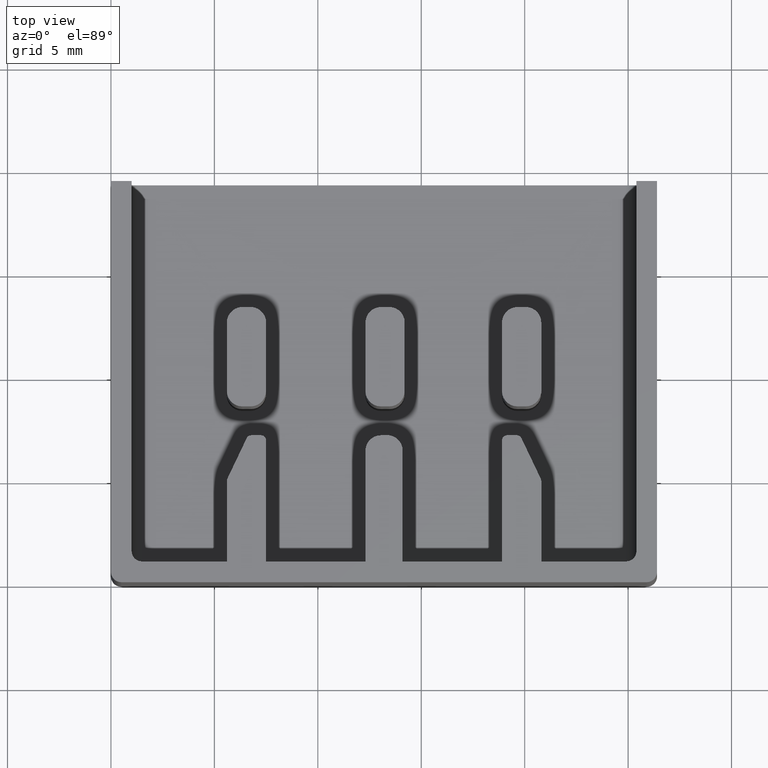
[diagram: clean part render]
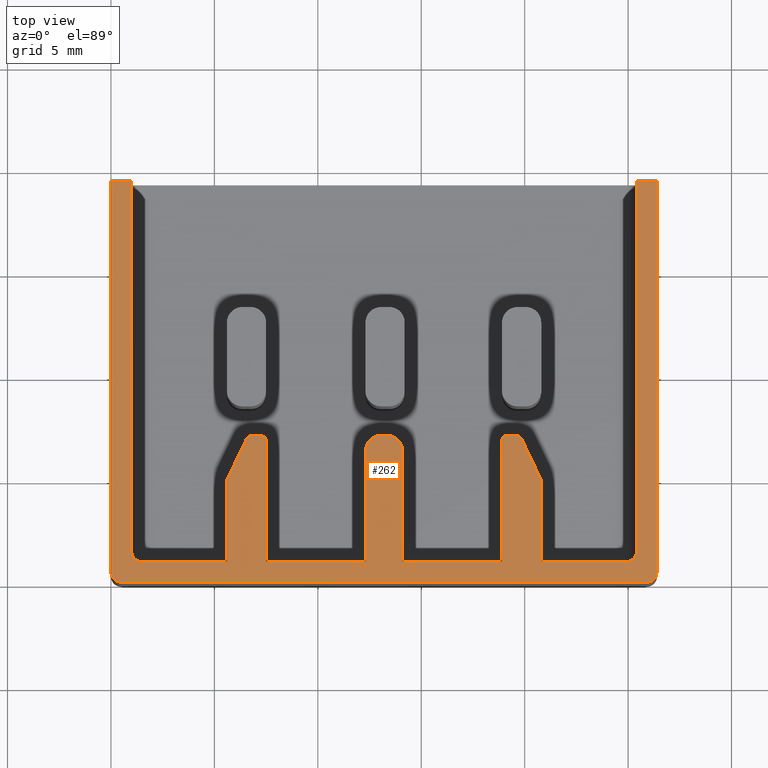
[diagram: same view with one face highlighted and labeled with its STEP entity id]
A machine part, top view. The second image highlights one B-rep face of the part: STEP entity #262.
In plain terms, the highlighted planar face has unit normal (0, 0, -1).
Its self-contained STEP definition (entity closure, byte-faithful):
#5 = EDGE_CURVE ( 'NONE', #844, #812, #271, .T. ) ;
#9 = EDGE_CURVE ( 'NONE', #807, #791, #1285, .T. ) ;
#10 = EDGE_CURVE ( 'NONE', #804, #785, #1305, .T. ) ;
#53 = EDGE_CURVE ( 'NONE', #750, #786, #1484, .T. ) ;
#54 = EDGE_CURVE ( 'NONE', #822, #906, #1452, .T. ) ;
#55 = EDGE_CURVE ( 'NONE', #771, #858, #1492, .T. ) ;
#56 = EDGE_CURVE ( 'NONE', #823, #771, #1483, .T. ) ;
#57 = EDGE_CURVE ( 'NONE', #791, #808, #342, .T. ) ;
#61 = EDGE_CURVE ( 'NONE', #798, #795, #346, .T. ) ;
#68 = EDGE_CURVE ( 'NONE', #836, #787, #375, .T. ) ;
#69 = EDGE_CURVE ( 'NONE', #902, #837, #1480, .T. ) ;
#71 = EDGE_CURVE ( 'NONE', #808, #823, #1530, .T. ) ;
#72 = EDGE_CURVE ( 'NONE', #797, #879, #1536, .T. ) ;
#73 = EDGE_CURVE ( 'NONE', #906, #807, #380, .T. ) ;
#76 = EDGE_CURVE ( 'NONE', #857, #827, #1519, .T. ) ;
#77 = EDGE_CURVE ( 'NONE', #783, #802, #405, .T. ) ;
#83 = EDGE_CURVE ( 'NONE', #842, #798, #1600, .T. ) ;
#87 = EDGE_CURVE ( 'NONE', #787, #839, #1598, .T. ) ;
#88 = EDGE_CURVE ( 'NONE', #795, #836, #1589, .T. ) ;
#90 = EDGE_CURVE ( 'NONE', #839, #834, #410, .T. ) ;
#92 = EDGE_CURVE ( 'NONE', #879, #837, #1585, .T. ) ;
#94 = EDGE_CURVE ( 'NONE', #857, #802, #1570, .T. ) ;
#95 = EDGE_CURVE ( 'NONE', #834, #750, #1571, .T. ) ;
#98 = EDGE_CURVE ( 'NONE', #860, #796, #383, .T. ) ;
#99 = EDGE_CURVE ( 'NONE', #796, #838, #1624, .T. ) ;
#100 = EDGE_CURVE ( 'NONE', #785, #822, #398, .T. ) ;
#102 = EDGE_CURVE ( 'NONE', #902, #786, #399, .T. ) ;
#103 = EDGE_CURVE ( 'NONE', #838, #797, #361, .T. ) ;
#105 = EDGE_CURVE ( 'NONE', #819, #844, #1626, .T. ) ;
#106 = EDGE_CURVE ( 'NONE', #783, #804, #1637, .T. ) ;
#107 = EDGE_CURVE ( 'NONE', #827, #860, #1619, .T. ) ;
#109 = EDGE_CURVE ( 'NONE', #858, #819, #366, .T. ) ;
#111 = EDGE_CURVE ( 'NONE', #812, #903, #1605, .T. ) ;
#114 = EDGE_CURVE ( 'NONE', #903, #842, #1617, .T. ) ;
#262 = ADVANCED_FACE ( 'NONE', ( #1924 ), #1915, .F. ) ;
#271 = CIRCLE ( 'NONE', #274, 0.7499999999999676900 ) ;
#274 = AXIS2_PLACEMENT_3D ( 'NONE', #1333, #1307, #1335 ) ;
#276 = VECTOR ( 'NONE', #1356, 1000.000000000000000 ) ;
#286 = VECTOR ( 'NONE', #1375, 1000.000000000000000 ) ;
#323 = AXIS2_PLACEMENT_3D ( 'NONE', #1491, #1472, #1475 ) ;
#334 = VECTOR ( 'NONE', #1485, 1000.000000000000000 ) ;
#335 = VECTOR ( 'NONE', #1476, 999.9999999999998900 ) ;
#341 = VECTOR ( 'NONE', #1496, 1000.000000000000000 ) ;
#342 = CIRCLE ( 'NONE', #323, 0.2499999999999794100 ) ;
#346 = CIRCLE ( 'NONE', #348, 0.2499999999999794100 ) ;
#348 = AXIS2_PLACEMENT_3D ( 'NONE', #1488, #1467, #1478 ) ;
#353 = VECTOR ( 'NONE', #1502, 1000.000000000000000 ) ;
#360 = VECTOR ( 'NONE', #1603, 1000.000000000000000 ) ;
#361 = CIRCLE ( 'NONE', #387, 0.5000000000000004400 ) ;
#364 = VECTOR ( 'NONE', #1604, 1000.000000000000000 ) ;
#366 = CIRCLE ( 'NONE', #404, 0.7500000000000145400 ) ;
#369 = AXIS2_PLACEMENT_3D ( 'NONE', #1552, #1547, #1540 ) ;
#370 = VECTOR ( 'NONE', #1566, 1000.000000000000000 ) ;
#372 = VECTOR ( 'NONE', #615, 1000.000000000000000 ) ;
#373 = VECTOR ( 'NONE', #1522, 1000.000000000000000 ) ;
#374 = VECTOR ( 'NONE', #1568, 1000.000000000000000 ) ;
#375 = CIRCLE ( 'NONE', #369, 0.2500000000000141000 ) ;
#376 = VECTOR ( 'NONE', #1586, 1000.000000000000000 ) ;
#380 = CIRCLE ( 'NONE', #389, 0.2500000000000141000 ) ;
#381 = VECTOR ( 'NONE', #1584, 1000.000000000000100 ) ;
#382 = VECTOR ( 'NONE', #1593, 1000.000000000000000 ) ;
#383 = CIRCLE ( 'NONE', #388, 0.5000000000000000000 ) ;
#384 = AXIS2_PLACEMENT_3D ( 'NONE', #1622, #1610, #1623 ) ;
#386 = AXIS2_PLACEMENT_3D ( 'NONE', #1614, #1628, #1625 ) ;
#387 = AXIS2_PLACEMENT_3D ( 'NONE', #1608, #1631, #1613 ) ;
#388 = AXIS2_PLACEMENT_3D ( 'NONE', #1627, #1630, #1633 ) ;
#389 = AXIS2_PLACEMENT_3D ( 'NONE', #1537, #1541, #1516 ) ;
#392 = VECTOR ( 'NONE', #1635, 1000.000000000000000 ) ;
#393 = VECTOR ( 'NONE', #1588, 1000.000000000000000 ) ;
#394 = VECTOR ( 'NONE', #1529, 1000.000000000000000 ) ;
#398 = CIRCLE ( 'NONE', #384, 0.2500000000000002200 ) ;
#399 = CIRCLE ( 'NONE', #386, 0.5000000000000004400 ) ;
#401 = VECTOR ( 'NONE', #1638, 1000.000000000000000 ) ;
#404 = AXIS2_PLACEMENT_3D ( 'NONE', #1609, #1611, #1618 ) ;
#405 = CIRCLE ( 'NONE', #406, 0.5000000000000000000 ) ;
#406 = AXIS2_PLACEMENT_3D ( 'NONE', #1546, #1548, #1513 ) ;
#409 = VECTOR ( 'NONE', #1512, 1000.000000000000000 ) ;
#410 = CIRCLE ( 'NONE', #415, 0.2500000000000071600 ) ;
#415 = AXIS2_PLACEMENT_3D ( 'NONE', #1562, #1579, #1573 ) ;
#416 = VECTOR ( 'NONE', #1550, 1000.000000000000000 ) ;
#455 = VECTOR ( 'NONE', #623, 1000.000000000000000 ) ;
#595 = AXIS2_PLACEMENT_3D ( 'NONE', #1957, #1959, #1938 ) ;
#612 = CARTESIAN_POINT ( 'NONE',  ( 14.10000000000007800, 1.000000000000000900, 13.30000000000000100 ) ) ;
#615 = DIRECTION ( 'NONE',  ( 0.0000000000000000000, -1.000000000000000000, 0.0000000000000000000 ) ) ;
#623 = DIRECTION ( 'NONE',  ( 1.000000000000000000, 0.0000000000000000000, 0.0000000000000000000 ) ) ;
#625 = CARTESIAN_POINT ( 'NONE',  ( 0.0000000000000000000, 1.000000000000000900, 13.30000000000000100 ) ) ;
#750 = VERTEX_POINT ( 'NONE', #1972 ) ;
#771 = VERTEX_POINT ( 'NONE', #1976 ) ;
#783 = VERTEX_POINT ( 'NONE', #1963 ) ;
#785 = VERTEX_POINT ( 'NONE', #1964 ) ;
#786 = VERTEX_POINT ( 'NONE', #1986 ) ;
#787 = VERTEX_POINT ( 'NONE', #1996 ) ;
#791 = VERTEX_POINT ( 'NONE', #1980 ) ;
#795 = VERTEX_POINT ( 'NONE', #1962 ) ;
#796 = VERTEX_POINT ( 'NONE', #1981 ) ;
#797 = VERTEX_POINT ( 'NONE', #1965 ) ;
#798 = VERTEX_POINT ( 'NONE', #1967 ) ;
#802 = VERTEX_POINT ( 'NONE', #1969 ) ;
#804 = VERTEX_POINT ( 'NONE', #1977 ) ;
#807 = VERTEX_POINT ( 'NONE', #1989 ) ;
#808 = VERTEX_POINT ( 'NONE', #2052 ) ;
#812 = VERTEX_POINT ( 'NONE', #2038 ) ;
#819 = VERTEX_POINT ( 'NONE', #2056 ) ;
#822 = VERTEX_POINT ( 'NONE', #2037 ) ;
#823 = VERTEX_POINT ( 'NONE', #2030 ) ;
#827 = VERTEX_POINT ( 'NONE', #2069 ) ;
#834 = VERTEX_POINT ( 'NONE', #2050 ) ;
#836 = VERTEX_POINT ( 'NONE', #2029 ) ;
#837 = VERTEX_POINT ( 'NONE', #2041 ) ;
#838 = VERTEX_POINT ( 'NONE', #2026 ) ;
#839 = VERTEX_POINT ( 'NONE', #2051 ) ;
#842 = VERTEX_POINT ( 'NONE', #2078 ) ;
#844 = VERTEX_POINT ( 'NONE', #2058 ) ;
#857 = VERTEX_POINT ( 'NONE', #2046 ) ;
#858 = VERTEX_POINT ( 'NONE', #2068 ) ;
#860 = VERTEX_POINT ( 'NONE', #2048 ) ;
#879 = VERTEX_POINT ( 'NONE', #2064 ) ;
#902 = VERTEX_POINT ( 'NONE', #2071 ) ;
#903 = VERTEX_POINT ( 'NONE', #2066 ) ;
#906 = VERTEX_POINT ( 'NONE', #2065 ) ;
#911 = ORIENTED_EDGE ( 'NONE', *, *, #100, .F. ) ;
#912 = ORIENTED_EDGE ( 'NONE', *, *, #99, .T. ) ;
#913 = ORIENTED_EDGE ( 'NONE', *, *, #9, .F. ) ;
#919 = ORIENTED_EDGE ( 'NONE', *, *, #88, .F. ) ;
#920 = ORIENTED_EDGE ( 'NONE', *, *, #102, .T. ) ;
#922 = ORIENTED_EDGE ( 'NONE', *, *, #90, .F. ) ;
#923 = ORIENTED_EDGE ( 'NONE', *, *, #5, .F. ) ;
#925 = ORIENTED_EDGE ( 'NONE', *, *, #10, .F. ) ;
#929 = ORIENTED_EDGE ( 'NONE', *, *, #105, .F. ) ;
#930 = ORIENTED_EDGE ( 'NONE', *, *, #87, .F. ) ;
#931 = ORIENTED_EDGE ( 'NONE', *, *, #83, .F. ) ;
#933 = ORIENTED_EDGE ( 'NONE', *, *, #111, .F. ) ;
#935 = ORIENTED_EDGE ( 'NONE', *, *, #72, .T. ) ;
#939 = ORIENTED_EDGE ( 'NONE', *, *, #107, .T. ) ;
#940 = ORIENTED_EDGE ( 'NONE', *, *, #56, .F. ) ;
#948 = ORIENTED_EDGE ( 'NONE', *, *, #68, .F. ) ;
#949 = ORIENTED_EDGE ( 'NONE', *, *, #95, .F. ) ;
#952 = ORIENTED_EDGE ( 'NONE', *, *, #73, .F. ) ;
#954 = ORIENTED_EDGE ( 'NONE', *, *, #106, .F. ) ;
#958 = ORIENTED_EDGE ( 'NONE', *, *, #98, .T. ) ;
#963 = ORIENTED_EDGE ( 'NONE', *, *, #57, .F. ) ;
#969 = ORIENTED_EDGE ( 'NONE', *, *, #114, .F. ) ;
#970 = ORIENTED_EDGE ( 'NONE', *, *, #103, .T. ) ;
#973 = ORIENTED_EDGE ( 'NONE', *, *, #55, .F. ) ;
#983 = ORIENTED_EDGE ( 'NONE', *, *, #94, .F. ) ;
#989 = ORIENTED_EDGE ( 'NONE', *, *, #61, .F. ) ;
#993 = ORIENTED_EDGE ( 'NONE', *, *, #109, .F. ) ;
#999 = ORIENTED_EDGE ( 'NONE', *, *, #77, .T. ) ;
#1003 = ORIENTED_EDGE ( 'NONE', *, *, #69, .F. ) ;
#1006 = ORIENTED_EDGE ( 'NONE', *, *, #71, .F. ) ;
#1011 = ORIENTED_EDGE ( 'NONE', *, *, #54, .F. ) ;
#1015 = ORIENTED_EDGE ( 'NONE', *, *, #92, .T. ) ;
#1019 = ORIENTED_EDGE ( 'NONE', *, *, #76, .T. ) ;
#1034 = ORIENTED_EDGE ( 'NONE', *, *, #53, .F. ) ;
#1256 = EDGE_LOOP ( 'NONE', ( #912, #970, #935, #1015, #1003, #920, #1034, #949, #922, #930, #948, #919, #989, #931, #969, #933, #923, #929, #993, #973, #940, #1006, #963, #913, #952, #1011, #911, #925, #954, #999, #983, #1019, #939, #958 ) ) ;
#1285 = LINE ( 'NONE', #1347, #286 ) ;
#1305 = LINE ( 'NONE', #1370, #276 ) ;
#1307 = DIRECTION ( 'NONE',  ( 0.0000000000000000000, 0.0000000000000000000, -1.000000000000000000 ) ) ;
#1333 = CARTESIAN_POINT ( 'NONE',  ( 13.35002986070870700, 6.356692545947362700, 13.30000000000000100 ) ) ;
#1335 = DIRECTION ( 'NONE',  ( -1.000000000000000000, 0.0000000000000000000, 0.0000000000000000000 ) ) ;
#1347 = CARTESIAN_POINT ( 'NONE',  ( 7.250000000000029300, 7.099999999999969400, 13.30000000000000100 ) ) ;
#1356 = DIRECTION ( 'NONE',  ( -1.069323119797289600E-014, 1.000000000000000000, 0.0000000000000000000 ) ) ;
#1370 = CARTESIAN_POINT ( 'NONE',  ( 5.599999999999947200, 0.9999999999999731300, 13.30000000000000100 ) ) ;
#1375 = DIRECTION ( 'NONE',  ( 1.000000000000000000, 0.0000000000000000000, 0.0000000000000000000 ) ) ;
#1452 = LINE ( 'NONE', #1494, #335 ) ;
#1467 = DIRECTION ( 'NONE',  ( 0.0000000000000000000, 0.0000000000000000000, -1.000000000000000000 ) ) ;
#1471 = CARTESIAN_POINT ( 'NONE',  ( 25.39999999999999900, 19.39999999999999900, 13.30000000000000100 ) ) ;
#1472 = DIRECTION ( 'NONE',  ( 0.0000000000000000000, 0.0000000000000000000, -1.000000000000000000 ) ) ;
#1475 = DIRECTION ( 'NONE',  ( -1.000000000000000000, 0.0000000000000000000, 0.0000000000000000000 ) ) ;
#1476 = DIRECTION ( 'NONE',  ( 0.4305059653102016900, 0.9025877319309916200, 0.0000000000000000000 ) ) ;
#1478 = DIRECTION ( 'NONE',  ( -1.000000000000000000, 0.0000000000000000000, 0.0000000000000000000 ) ) ;
#1480 = LINE ( 'NONE', #1471, #416 ) ;
#1483 = LINE ( 'NONE', #1503, #353 ) ;
#1484 = LINE ( 'NONE', #1509, #334 ) ;
#1485 = DIRECTION ( 'NONE',  ( 1.000000000000000000, 0.0000000000000000000, 0.0000000000000000000 ) ) ;
#1488 = CARTESIAN_POINT ( 'NONE',  ( 19.14999999999991000, 6.849999999999997000, 13.30000000000000100 ) ) ;
#1491 = CARTESIAN_POINT ( 'NONE',  ( 7.250000000000084400, 6.849999999999997000, 13.30000000000000100 ) ) ;
#1492 = LINE ( 'NONE', #1495, #341 ) ;
#1494 = CARTESIAN_POINT ( 'NONE',  ( 5.624353067017162600, 5.001058013815869800, 13.30000000000000100 ) ) ;
#1495 = CARTESIAN_POINT ( 'NONE',  ( 12.29999999999991700, 6.349999999999885100, 13.30000000000000100 ) ) ;
#1496 = DIRECTION ( 'NONE',  ( 0.0000000000000000000, 1.000000000000000000, 0.0000000000000000000 ) ) ;
#1502 = DIRECTION ( 'NONE',  ( 1.000000000000000000, 0.0000000000000000000, 0.0000000000000000000 ) ) ;
#1503 = CARTESIAN_POINT ( 'NONE',  ( 0.0000000000000000000, 1.000000000000000900, 13.30000000000000100 ) ) ;
#1509 = CARTESIAN_POINT ( 'NONE',  ( 0.0000000000000000000, 1.000000000000000900, 13.30000000000000100 ) ) ;
#1512 = DIRECTION ( 'NONE',  ( 0.0000000000000000000, 1.000000000000000000, 0.0000000000000000000 ) ) ;
#1513 = DIRECTION ( 'NONE',  ( -1.000000000000000000, 0.0000000000000000000, 0.0000000000000000000 ) ) ;
#1516 = DIRECTION ( 'NONE',  ( -1.000000000000000000, 0.0000000000000000000, 0.0000000000000000000 ) ) ;
#1519 = LINE ( 'NONE', #1531, #373 ) ;
#1522 = DIRECTION ( 'NONE',  ( -1.000000000000000000, -0.0000000000000000000, -0.0000000000000000000 ) ) ;
#1529 = DIRECTION ( 'NONE',  ( -9.489085680556855100E-015, -1.000000000000000000, 0.0000000000000000000 ) ) ;
#1530 = LINE ( 'NONE', #1549, #394 ) ;
#1531 = CARTESIAN_POINT ( 'NONE',  ( 0.0000000000000000000, 19.39999999999999900, 13.30000000000000100 ) ) ;
#1536 = LINE ( 'NONE', #1538, #409 ) ;
#1537 = CARTESIAN_POINT ( 'NONE',  ( 6.783221637418591000, 6.849999999999941000, 13.30000000000000100 ) ) ;
#1538 = CARTESIAN_POINT ( 'NONE',  ( 26.39999999999999900, 0.0000000000000000000, 13.30000000000000100 ) ) ;
#1540 = DIRECTION ( 'NONE',  ( -1.000000000000000000, 0.0000000000000000000, 0.0000000000000000000 ) ) ;
#1541 = DIRECTION ( 'NONE',  ( 0.0000000000000000000, 0.0000000000000000000, -1.000000000000000000 ) ) ;
#1546 = CARTESIAN_POINT ( 'NONE',  ( 1.500000000000000000, 1.500000000000000000, 13.30000000000000100 ) ) ;
#1547 = DIRECTION ( 'NONE',  ( 0.0000000000000000000, 0.0000000000000000000, -1.000000000000000000 ) ) ;
#1548 = DIRECTION ( 'NONE',  ( 0.0000000000000000000, 0.0000000000000000000, -1.000000000000000000 ) ) ;
#1549 = CARTESIAN_POINT ( 'NONE',  ( 7.500000000000071100, 6.849999999999997000, 13.30000000000000100 ) ) ;
#1550 = DIRECTION ( 'NONE',  ( 0.0000000000000000000, 1.000000000000000000, 0.0000000000000000000 ) ) ;
#1552 = CARTESIAN_POINT ( 'NONE',  ( 19.61677836258140300, 6.849999999999941000, 13.30000000000000100 ) ) ;
#1558 = CARTESIAN_POINT ( 'NONE',  ( 18.89999999999992400, 6.849999999999997000, 13.30000000000000100 ) ) ;
#1562 = CARTESIAN_POINT ( 'NONE',  ( 20.55000000000009000, 4.893431522488308300, 13.30000000000000100 ) ) ;
#1566 = DIRECTION ( 'NONE',  ( 0.0000000000000000000, -1.000000000000000000, 0.0000000000000000000 ) ) ;
#1568 = DIRECTION ( 'NONE',  ( -9.489085680556855100E-015, 1.000000000000000000, 0.0000000000000000000 ) ) ;
#1570 = LINE ( 'NONE', #1574, #370 ) ;
#1571 = LINE ( 'NONE', #1590, #382 ) ;
#1573 = DIRECTION ( 'NONE',  ( -1.000000000000000000, 0.0000000000000000000, 0.0000000000000000000 ) ) ;
#1574 = CARTESIAN_POINT ( 'NONE',  ( 1.000000000000000000, 19.39999999999999900, 13.30000000000000100 ) ) ;
#1576 = CARTESIAN_POINT ( 'NONE',  ( 19.14999999999996700, 7.099999999999969400, 13.30000000000000100 ) ) ;
#1579 = DIRECTION ( 'NONE',  ( 0.0000000000000000000, 0.0000000000000000000, -1.000000000000000000 ) ) ;
#1581 = CARTESIAN_POINT ( 'NONE',  ( 20.77564693298284500, 5.001058013815869800, 13.30000000000000100 ) ) ;
#1584 = DIRECTION ( 'NONE',  ( 0.4305059653102068500, -0.9025877319309890700, 0.0000000000000000000 ) ) ;
#1585 = LINE ( 'NONE', #1587, #393 ) ;
#1586 = DIRECTION ( 'NONE',  ( 1.000000000000000000, 0.0000000000000000000, 0.0000000000000000000 ) ) ;
#1587 = CARTESIAN_POINT ( 'NONE',  ( 0.0000000000000000000, 19.39999999999999900, 13.30000000000000100 ) ) ;
#1588 = DIRECTION ( 'NONE',  ( -1.000000000000000000, -0.0000000000000000000, -0.0000000000000000000 ) ) ;
#1589 = LINE ( 'NONE', #1576, #376 ) ;
#1590 = CARTESIAN_POINT ( 'NONE',  ( 20.80000000000004700, 0.9999999999999731300, 13.30000000000000100 ) ) ;
#1593 = DIRECTION ( 'NONE',  ( -1.069323119797289600E-014, -1.000000000000000000, 0.0000000000000000000 ) ) ;
#1598 = LINE ( 'NONE', #1581, #381 ) ;
#1600 = LINE ( 'NONE', #1558, #374 ) ;
#1603 = DIRECTION ( 'NONE',  ( 1.000000000000000000, -1.387778780781165200E-013, 0.0000000000000000000 ) ) ;
#1604 = DIRECTION ( 'NONE',  ( -0.0000000000000000000, -1.000000000000000000, -0.0000000000000000000 ) ) ;
#1605 = LINE ( 'NONE', #612, #372 ) ;
#1608 = CARTESIAN_POINT ( 'NONE',  ( 25.89999999999999900, 0.5000000000000000000, 13.30000000000000100 ) ) ;
#1609 = CARTESIAN_POINT ( 'NONE',  ( 13.04999999999991700, 6.349999999999885100, 13.30000000000000100 ) ) ;
#1610 = DIRECTION ( 'NONE',  ( 0.0000000000000000000, 0.0000000000000000000, -1.000000000000000000 ) ) ;
#1611 = DIRECTION ( 'NONE',  ( 0.0000000000000000000, 0.0000000000000000000, -1.000000000000000000 ) ) ;
#1613 = DIRECTION ( 'NONE',  ( -1.000000000000000000, 0.0000000000000000000, 0.0000000000000000000 ) ) ;
#1614 = CARTESIAN_POINT ( 'NONE',  ( 24.89999999999999900, 1.500000000000000000, 13.30000000000000100 ) ) ;
#1617 = LINE ( 'NONE', #625, #455 ) ;
#1618 = DIRECTION ( 'NONE',  ( -1.000000000000000000, 0.0000000000000000000, 0.0000000000000000000 ) ) ;
#1619 = LINE ( 'NONE', #1639, #364 ) ;
#1620 = CARTESIAN_POINT ( 'NONE',  ( 0.0000000000000000000, 0.0000000000000000000, 13.30000000000000100 ) ) ;
#1622 = CARTESIAN_POINT ( 'NONE',  ( 5.849999999999905500, 4.893431522488308300, 13.30000000000000100 ) ) ;
#1623 = DIRECTION ( 'NONE',  ( -1.000000000000000000, 0.0000000000000000000, 0.0000000000000000000 ) ) ;
#1624 = LINE ( 'NONE', #1620, #392 ) ;
#1625 = DIRECTION ( 'NONE',  ( -1.000000000000000000, 0.0000000000000000000, 0.0000000000000000000 ) ) ;
#1626 = LINE ( 'NONE', #1629, #360 ) ;
#1627 = CARTESIAN_POINT ( 'NONE',  ( 0.5000000000000000000, 0.5000000000000000000, 13.30000000000000100 ) ) ;
#1628 = DIRECTION ( 'NONE',  ( 0.0000000000000000000, 0.0000000000000000000, -1.000000000000000000 ) ) ;
#1629 = CARTESIAN_POINT ( 'NONE',  ( 13.04999999999991700, 7.099999999999913500, 13.30000000000000100 ) ) ;
#1630 = DIRECTION ( 'NONE',  ( -0.0000000000000000000, -0.0000000000000000000, 1.000000000000000000 ) ) ;
#1631 = DIRECTION ( 'NONE',  ( -0.0000000000000000000, -0.0000000000000000000, 1.000000000000000000 ) ) ;
#1633 = DIRECTION ( 'NONE',  ( -1.000000000000000000, 0.0000000000000000000, 0.0000000000000000000 ) ) ;
#1635 = DIRECTION ( 'NONE',  ( 1.000000000000000000, 0.0000000000000000000, 0.0000000000000000000 ) ) ;
#1637 = LINE ( 'NONE', #1641, #401 ) ;
#1638 = DIRECTION ( 'NONE',  ( 1.000000000000000000, 0.0000000000000000000, 0.0000000000000000000 ) ) ;
#1639 = CARTESIAN_POINT ( 'NONE',  ( 0.0000000000000000000, 0.0000000000000000000, 13.30000000000000100 ) ) ;
#1641 = CARTESIAN_POINT ( 'NONE',  ( 0.0000000000000000000, 1.000000000000000900, 13.30000000000000100 ) ) ;
#1915 = PLANE ( 'NONE',  #595 ) ;
#1924 = FACE_OUTER_BOUND ( 'NONE', #1256, .T. ) ;
#1938 = DIRECTION ( 'NONE',  ( -1.000000000000000000, 0.0000000000000000000, -0.0000000000000000000 ) ) ;
#1957 = CARTESIAN_POINT ( 'NONE',  ( 0.0000000000000000000, 19.39999999999999900, 13.30000000000000100 ) ) ;
#1959 = DIRECTION ( 'NONE',  ( 0.0000000000000000000, 0.0000000000000000000, -1.000000000000000000 ) ) ;
#1962 = CARTESIAN_POINT ( 'NONE',  ( 19.14999999999996700, 7.099999999999969400, 13.30000000000000100 ) ) ;
#1963 = CARTESIAN_POINT ( 'NONE',  ( 1.500000000000000000, 1.000000000000000900, 13.30000000000000100 ) ) ;
#1964 = CARTESIAN_POINT ( 'NONE',  ( 5.599999999999905500, 4.893431522488308300, 13.30000000000000100 ) ) ;
#1965 = CARTESIAN_POINT ( 'NONE',  ( 26.39999999999999900, 0.5000000000000000000, 13.30000000000000100 ) ) ;
#1967 = CARTESIAN_POINT ( 'NONE',  ( 18.89999999999992400, 6.849999999999997000, 13.30000000000000100 ) ) ;
#1969 = CARTESIAN_POINT ( 'NONE',  ( 1.000000000000000000, 1.500000000000001300, 13.30000000000000100 ) ) ;
#1972 = CARTESIAN_POINT ( 'NONE',  ( 20.80000000000004700, 0.9999999999999731300, 13.30000000000000100 ) ) ;
#1976 = CARTESIAN_POINT ( 'NONE',  ( 12.29999999999990300, 1.000000000000000900, 13.30000000000000100 ) ) ;
#1977 = CARTESIAN_POINT ( 'NONE',  ( 5.599999999999925900, 1.000000000000000900, 13.30000000000000100 ) ) ;
#1980 = CARTESIAN_POINT ( 'NONE',  ( 7.250000000000029300, 7.099999999999969400, 13.30000000000000100 ) ) ;
#1981 = CARTESIAN_POINT ( 'NONE',  ( 0.5000000000000000000, 0.0000000000000000000, 13.30000000000000100 ) ) ;
#1986 = CARTESIAN_POINT ( 'NONE',  ( 24.89999999999999900, 1.000000000000000900, 13.30000000000000100 ) ) ;
#1989 = CARTESIAN_POINT ( 'NONE',  ( 6.783221637418576800, 7.099999999999955200, 13.30000000000000100 ) ) ;
#1996 = CARTESIAN_POINT ( 'NONE',  ( 19.84242529556416200, 6.957626491327508800, 13.30000000000000100 ) ) ;
#2026 = CARTESIAN_POINT ( 'NONE',  ( 25.89999999999999900, 0.0000000000000000000, 13.30000000000000100 ) ) ;
#2029 = CARTESIAN_POINT ( 'NONE',  ( 19.61677836258141700, 7.099999999999955200, 13.30000000000000100 ) ) ;
#2030 = CARTESIAN_POINT ( 'NONE',  ( 7.500000000000015100, 0.9999999999999731300, 13.30000000000000100 ) ) ;
#2037 = CARTESIAN_POINT ( 'NONE',  ( 5.624353067017162600, 5.001058013815869800, 13.30000000000000100 ) ) ;
#2038 = CARTESIAN_POINT ( 'NONE',  ( 14.10000000000006000, 6.349999999999885100, 13.30000000000000100 ) ) ;
#2041 = CARTESIAN_POINT ( 'NONE',  ( 25.39999999999999900, 19.39999999999999900, 13.30000000000000100 ) ) ;
#2046 = CARTESIAN_POINT ( 'NONE',  ( 1.000000000000000000, 19.39999999999999900, 13.30000000000000100 ) ) ;
#2048 = CARTESIAN_POINT ( 'NONE',  ( 0.0000000000000000000, 0.5000000000000000000, 13.30000000000000100 ) ) ;
#2050 = CARTESIAN_POINT ( 'NONE',  ( 20.80000000000009700, 4.893431522488308300, 13.30000000000000100 ) ) ;
#2051 = CARTESIAN_POINT ( 'NONE',  ( 20.77564693298284500, 5.001058013815868000, 13.30000000000000100 ) ) ;
#2052 = CARTESIAN_POINT ( 'NONE',  ( 7.500000000000063900, 6.849999999999997000, 13.30000000000000100 ) ) ;
#2056 = CARTESIAN_POINT ( 'NONE',  ( 13.04999999999991700, 7.099999999999913500, 13.30000000000000100 ) ) ;
#2058 = CARTESIAN_POINT ( 'NONE',  ( 13.44999999999999900, 7.099999999999858400, 13.30000000000000100 ) ) ;
#2064 = CARTESIAN_POINT ( 'NONE',  ( 26.39999999999999900, 19.39999999999999900, 13.30000000000000100 ) ) ;
#2065 = CARTESIAN_POINT ( 'NONE',  ( 6.557574704435848100, 6.957626491327502500, 13.30000000000000100 ) ) ;
#2066 = CARTESIAN_POINT ( 'NONE',  ( 14.10000000000007800, 1.000000000000000900, 13.30000000000000100 ) ) ;
#2068 = CARTESIAN_POINT ( 'NONE',  ( 12.29999999999991700, 6.349999999999885100, 13.30000000000000100 ) ) ;
#2069 = CARTESIAN_POINT ( 'NONE',  ( 0.0000000000000000000, 19.39999999999999900, 13.30000000000000100 ) ) ;
#2071 = CARTESIAN_POINT ( 'NONE',  ( 25.39999999999999900, 1.500000000000001300, 13.30000000000000100 ) ) ;
#2078 = CARTESIAN_POINT ( 'NONE',  ( 18.89999999999995200, 1.000000000000000900, 13.30000000000000100 ) ) ;